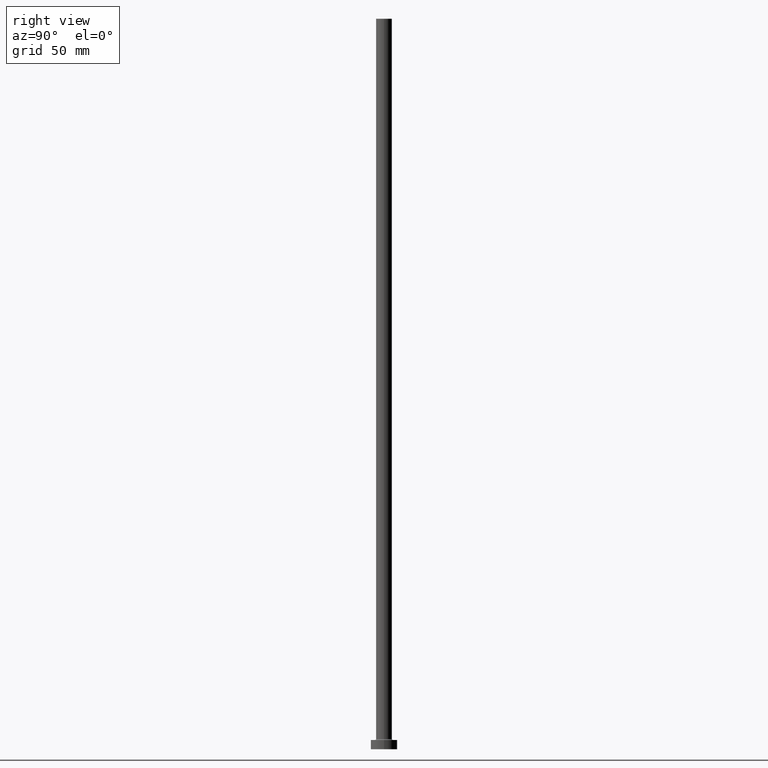
[diagram: clean part render]
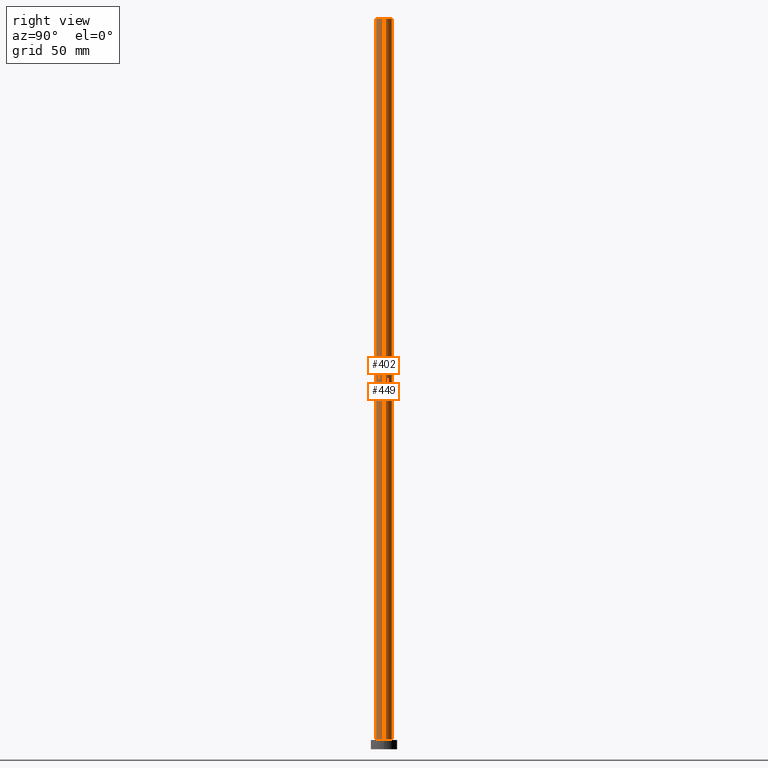
[diagram: same view with one multi-face feature highlighted, each face labeled with its STEP entity id]
A machine part, right view. The highlighted faces form ONE feature: a constant-radius fillet chain: 2 tangent blend faces with common blend radius 6 mm. The faces share edges in the B-rep.
Their STEP definitions:
[1] entity #402 (Cylinder):
#28 = VERTEX_POINT ( 'NONE', #105 ) ;
#33 = EDGE_CURVE ( 'NONE', #376, #28, #453, .T. ) ;
#43 = VERTEX_POINT ( 'NONE', #148 ) ;
#44 = CARTESIAN_POINT ( 'NONE',  ( 6.000000000000000888, 7.347880794884120722E-16, 550.0000000000000000 ) ) ;
#54 = AXIS2_PLACEMENT_3D ( 'NONE', #459, #72, #144 ) ;
#72 = DIRECTION ( 'NONE',  ( 0.000000000000000000, 0.000000000000000000, 1.000000000000000000 ) ) ;
#85 = DIRECTION ( 'NONE',  ( 0.000000000000000000, 0.000000000000000000, 1.000000000000000000 ) ) ;
#88 = EDGE_LOOP ( 'NONE', ( #240, #369, #193, #161 ) ) ;
#93 = CARTESIAN_POINT ( 'NONE',  ( 0.000000000000000000, 0.000000000000000000, 550.0000000000000000 ) ) ;
#104 = EDGE_CURVE ( 'NONE', #225, #376, #432, .T. ) ;
#105 = CARTESIAN_POINT ( 'NONE',  ( 6.000000000000000888, 7.347880794884120722E-16, 7.700000000000040146 ) ) ;
#136 = AXIS2_PLACEMENT_3D ( 'NONE', #230, #85, #407 ) ;
#144 = DIRECTION ( 'NONE',  ( 1.000000000000000000, 0.000000000000000000, 0.000000000000000000 ) ) ;
#148 = CARTESIAN_POINT ( 'NONE',  ( 6.000000000000000888, 7.347880794884120722E-16, 550.0000000000000000 ) ) ;
#157 = DIRECTION ( 'NONE',  ( -0.000000000000000000, -0.000000000000000000, -1.000000000000000000 ) ) ;
#161 = ORIENTED_EDGE ( 'NONE', *, *, #33, .T. ) ;
#165 = CARTESIAN_POINT ( 'NONE',  ( -6.000000000000000888, 0.000000000000000000, 7.700000000000040146 ) ) ;
#193 = ORIENTED_EDGE ( 'NONE', *, *, #104, .T. ) ;
#199 = DIRECTION ( 'NONE',  ( -1.000000000000000000, 0.000000000000000000, 0.000000000000000000 ) ) ;
#201 = VECTOR ( 'NONE', #157, 1000.000000000000000 ) ;
#220 = DIRECTION ( 'NONE',  ( -0.000000000000000000, -0.000000000000000000, -1.000000000000000000 ) ) ;
#225 = VERTEX_POINT ( 'NONE', #304 ) ;
#227 = LINE ( 'NONE', #44, #201 ) ;
#230 = CARTESIAN_POINT ( 'NONE',  ( 0.000000000000000000, 0.000000000000000000, 550.0000000000000000 ) ) ;
#239 = EDGE_CURVE ( 'NONE', #43, #28, #227, .T. ) ;
#240 = ORIENTED_EDGE ( 'NONE', *, *, #239, .F. ) ;
#258 = CARTESIAN_POINT ( 'NONE',  ( -6.000000000000000888, 0.000000000000000000, 550.0000000000000000 ) ) ;
#262 = EDGE_CURVE ( 'NONE', #225, #43, #403, .T. ) ;
#285 = CYLINDRICAL_SURFACE ( 'NONE', #418, 6.000000000000000888 ) ;
#304 = CARTESIAN_POINT ( 'NONE',  ( -6.000000000000000888, 0.000000000000000000, 550.0000000000000000 ) ) ;
#311 = FACE_OUTER_BOUND ( 'NONE', #88, .T. ) ;
#369 = ORIENTED_EDGE ( 'NONE', *, *, #262, .F. ) ;
#376 = VERTEX_POINT ( 'NONE', #165 ) ;
#380 = DIRECTION ( 'NONE',  ( -0.000000000000000000, -0.000000000000000000, -1.000000000000000000 ) ) ;
#402 = ADVANCED_FACE ( 'NONE', ( #311 ), #285, .T. ) ;
#403 = CIRCLE ( 'NONE', #136, 6.000000000000000888 ) ;
#407 = DIRECTION ( 'NONE',  ( 1.000000000000000000, 0.000000000000000000, 0.000000000000000000 ) ) ;
#418 = AXIS2_PLACEMENT_3D ( 'NONE', #93, #380, #199 ) ;
#432 = LINE ( 'NONE', #258, #445 ) ;
#445 = VECTOR ( 'NONE', #220, 1000.000000000000000 ) ;
#453 = CIRCLE ( 'NONE', #54, 6.000000000000000888 ) ;
#459 = CARTESIAN_POINT ( 'NONE',  ( 0.000000000000000000, 0.000000000000000000, 7.700000000000040146 ) ) ;
[2] entity #449 (Cylinder):
#12 = DIRECTION ( 'NONE',  ( 0.000000000000000000, 0.000000000000000000, 1.000000000000000000 ) ) ;
#28 = VERTEX_POINT ( 'NONE', #105 ) ;
#43 = VERTEX_POINT ( 'NONE', #148 ) ;
#44 = CARTESIAN_POINT ( 'NONE',  ( 6.000000000000000888, 7.347880794884120722E-16, 550.0000000000000000 ) ) ;
#65 = ORIENTED_EDGE ( 'NONE', *, *, #180, .F. ) ;
#78 = DIRECTION ( 'NONE',  ( 0.000000000000000000, 0.000000000000000000, 1.000000000000000000 ) ) ;
#104 = EDGE_CURVE ( 'NONE', #225, #376, #432, .T. ) ;
#105 = CARTESIAN_POINT ( 'NONE',  ( 6.000000000000000888, 7.347880794884120722E-16, 7.700000000000040146 ) ) ;
#113 = CIRCLE ( 'NONE', #207, 6.000000000000000888 ) ;
#148 = CARTESIAN_POINT ( 'NONE',  ( 6.000000000000000888, 7.347880794884120722E-16, 550.0000000000000000 ) ) ;
#157 = DIRECTION ( 'NONE',  ( -0.000000000000000000, -0.000000000000000000, -1.000000000000000000 ) ) ;
#160 = CARTESIAN_POINT ( 'NONE',  ( 0.000000000000000000, 0.000000000000000000, 550.0000000000000000 ) ) ;
#165 = CARTESIAN_POINT ( 'NONE',  ( -6.000000000000000888, 0.000000000000000000, 7.700000000000040146 ) ) ;
#178 = ORIENTED_EDGE ( 'NONE', *, *, #104, .F. ) ;
#180 = EDGE_CURVE ( 'NONE', #43, #225, #113, .T. ) ;
#185 = EDGE_LOOP ( 'NONE', ( #65, #458, #397, #178 ) ) ;
#201 = VECTOR ( 'NONE', #157, 1000.000000000000000 ) ;
#203 = DIRECTION ( 'NONE',  ( -1.000000000000000000, 0.000000000000000000, 0.000000000000000000 ) ) ;
#207 = AXIS2_PLACEMENT_3D ( 'NONE', #160, #78, #268 ) ;
#215 = EDGE_CURVE ( 'NONE', #28, #376, #235, .T. ) ;
#220 = DIRECTION ( 'NONE',  ( -0.000000000000000000, -0.000000000000000000, -1.000000000000000000 ) ) ;
#225 = VERTEX_POINT ( 'NONE', #304 ) ;
#227 = LINE ( 'NONE', #44, #201 ) ;
#235 = CIRCLE ( 'NONE', #409, 6.000000000000000888 ) ;
#238 = FACE_OUTER_BOUND ( 'NONE', #185, .T. ) ;
#239 = EDGE_CURVE ( 'NONE', #43, #28, #227, .T. ) ;
#257 = AXIS2_PLACEMENT_3D ( 'NONE', #278, #414, #203 ) ;
#258 = CARTESIAN_POINT ( 'NONE',  ( -6.000000000000000888, 0.000000000000000000, 550.0000000000000000 ) ) ;
#268 = DIRECTION ( 'NONE',  ( 1.000000000000000000, 0.000000000000000000, 0.000000000000000000 ) ) ;
#278 = CARTESIAN_POINT ( 'NONE',  ( 0.000000000000000000, 0.000000000000000000, 550.0000000000000000 ) ) ;
#304 = CARTESIAN_POINT ( 'NONE',  ( -6.000000000000000888, 0.000000000000000000, 550.0000000000000000 ) ) ;
#308 = CARTESIAN_POINT ( 'NONE',  ( 0.000000000000000000, 0.000000000000000000, 7.700000000000040146 ) ) ;
#376 = VERTEX_POINT ( 'NONE', #165 ) ;
#397 = ORIENTED_EDGE ( 'NONE', *, *, #215, .T. ) ;
#409 = AXIS2_PLACEMENT_3D ( 'NONE', #308, #12, #439 ) ;
#414 = DIRECTION ( 'NONE',  ( -0.000000000000000000, -0.000000000000000000, -1.000000000000000000 ) ) ;
#432 = LINE ( 'NONE', #258, #445 ) ;
#439 = DIRECTION ( 'NONE',  ( 1.000000000000000000, 0.000000000000000000, 0.000000000000000000 ) ) ;
#445 = VECTOR ( 'NONE', #220, 1000.000000000000000 ) ;
#449 = ADVANCED_FACE ( 'NONE', ( #238 ), #452, .T. ) ;
#452 = CYLINDRICAL_SURFACE ( 'NONE', #257, 6.000000000000000888 ) ;
#458 = ORIENTED_EDGE ( 'NONE', *, *, #239, .T. ) ;